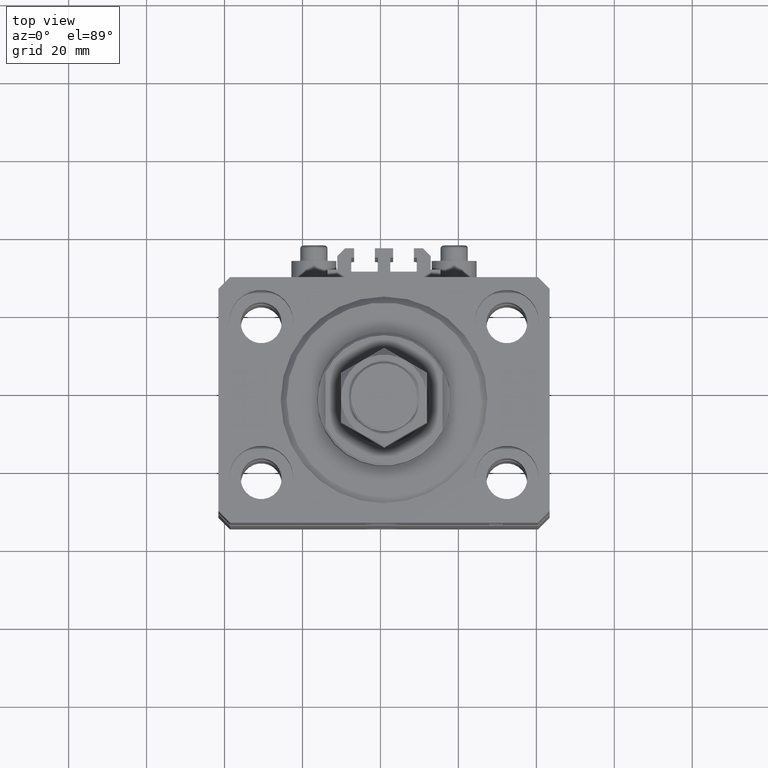
[diagram: clean part render]
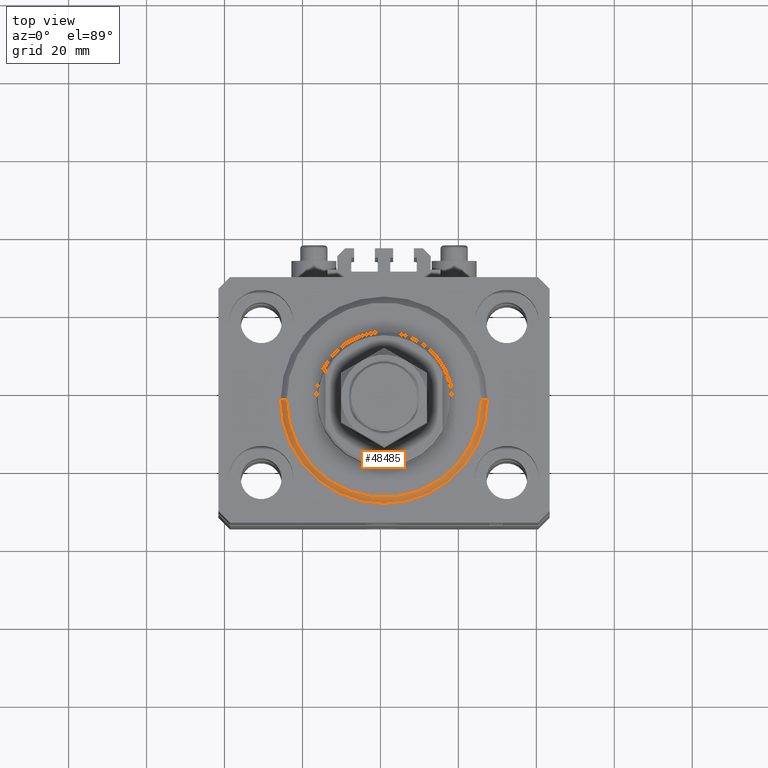
[diagram: same view with one face highlighted and labeled with its STEP entity id]
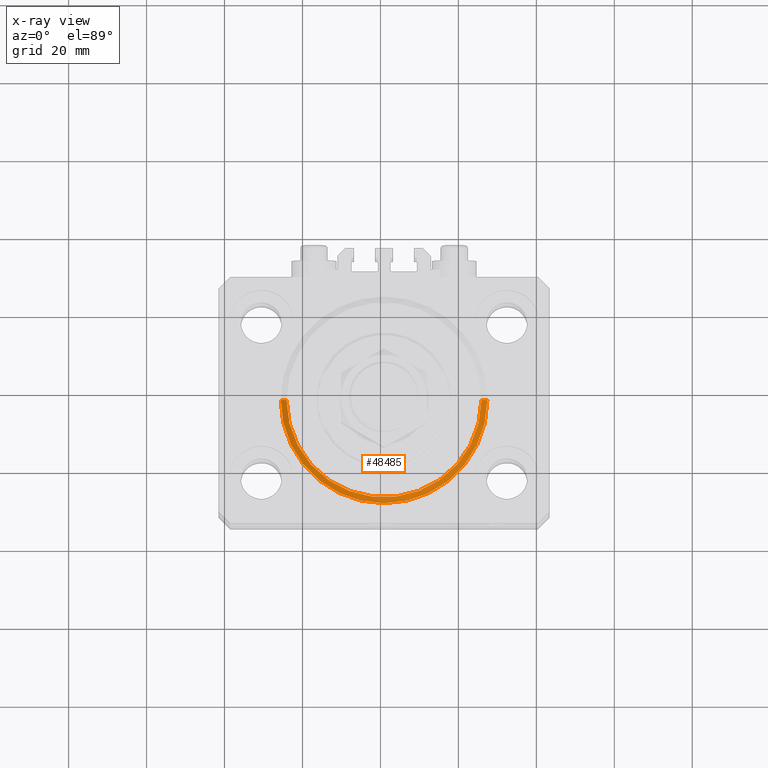
[diagram: x-ray of the same camera — body ghosted, the highlighted face saturated]
A machine part, top view. The second image highlights one B-rep face of the part: STEP entity #48485.
The next image is the same camera in x-ray: the body ghosted, the highlighted face saturated — about 0% of this face is hidden behind the body in this view.
In plain terms, the highlighted conical surface has half-angle 45 deg.
Its self-contained STEP definition (entity closure, byte-faithful):
#1701 = ORIENTED_EDGE ( 'NONE', *, *, #1730, .T. ) ;
#1730 = EDGE_CURVE ( 'NONE', #28769, #25370, #29634, .T. ) ;
#1746 = LINE ( 'NONE', #8984, #27903 ) ;
#2828 = CARTESIAN_POINT ( 'NONE',  ( -24.99999999999998224, 3.153465507804433615E-15, 0.000000000000000000 ) ) ;
#3593 = AXIS2_PLACEMENT_3D ( 'NONE', #35884, #40133, #16984 ) ;
#3679 = EDGE_CURVE ( 'NONE', #38087, #25370, #27474, .T. ) ;
#4215 = AXIS2_PLACEMENT_3D ( 'NONE', #8119, #16090, #20296 ) ;
#5021 = CARTESIAN_POINT ( 'NONE',  ( 0.000000000000000000, 0.000000000000000000, 1.500000000000018652 ) ) ;
#7684 = ORIENTED_EDGE ( 'NONE', *, *, #48801, .F. ) ;
#8119 = CARTESIAN_POINT ( 'NONE',  ( 0.000000000000000000, 0.000000000000000000, 0.000000000000000000 ) ) ;
#8984 = CARTESIAN_POINT ( 'NONE',  ( -26.50000000000000355, 3.245314017740486554E-15, 1.500000000000018652 ) ) ;
#10729 = CARTESIAN_POINT ( 'NONE',  ( 26.50000000000000355, 0.000000000000000000, 1.500000000000018652 ) ) ;
#12754 = DIRECTION ( 'NONE',  ( -0.000000000000000000, -0.000000000000000000, 1.000000000000000000 ) ) ;
#15463 = CIRCLE ( 'NONE', #4215, 24.99999999999998224 ) ;
#16090 = DIRECTION ( 'NONE',  ( -0.000000000000000000, -0.000000000000000000, -1.000000000000000000 ) ) ;
#16984 = DIRECTION ( 'NONE',  ( 1.000000000000000000, 0.000000000000000000, 0.000000000000000000 ) ) ;
#17963 = EDGE_LOOP ( 'NONE', ( #45278, #7684, #1701, #21302 ) ) ;
#18622 = VECTOR ( 'NONE', #22180, 1000.000000000000000 ) ;
#20296 = DIRECTION ( 'NONE',  ( 1.000000000000000000, 0.000000000000000000, 0.000000000000000000 ) ) ;
#21302 = ORIENTED_EDGE ( 'NONE', *, *, #3679, .F. ) ;
#22180 = DIRECTION ( 'NONE',  ( 0.7071067811865483499, 0.000000000000000000, 0.7071067811865466846 ) ) ;
#25370 = VERTEX_POINT ( 'NONE', #33833 ) ;
#26968 = VERTEX_POINT ( 'NONE', #2828 ) ;
#27474 = CIRCLE ( 'NONE', #3593, 26.50000000000000355 ) ;
#27903 = VECTOR ( 'NONE', #43348, 1000.000000000000000 ) ;
#28769 = VERTEX_POINT ( 'NONE', #38799 ) ;
#29634 = LINE ( 'NONE', #10729, #18622 ) ;
#32508 = CARTESIAN_POINT ( 'NONE',  ( -26.50000000000000355, 0.000000000000000000, 1.500000000000018652 ) ) ;
#33833 = CARTESIAN_POINT ( 'NONE',  ( 26.50000000000000355, 3.245314017740486554E-15, 1.500000000000018652 ) ) ;
#34084 = EDGE_CURVE ( 'NONE', #26968, #38087, #1746, .T. ) ;
#35884 = CARTESIAN_POINT ( 'NONE',  ( 0.000000000000000000, 0.000000000000000000, 1.500000000000018652 ) ) ;
#36863 = AXIS2_PLACEMENT_3D ( 'NONE', #5021, #12754, #43118 ) ;
#38087 = VERTEX_POINT ( 'NONE', #32508 ) ;
#38799 = CARTESIAN_POINT ( 'NONE',  ( 24.99999999999998224, 0.000000000000000000, 0.000000000000000000 ) ) ;
#39134 = FACE_OUTER_BOUND ( 'NONE', #17963, .T. ) ;
#40133 = DIRECTION ( 'NONE',  ( -0.000000000000000000, -0.000000000000000000, 1.000000000000000000 ) ) ;
#43118 = DIRECTION ( 'NONE',  ( 1.000000000000000000, 0.000000000000000000, 0.000000000000000000 ) ) ;
#43348 = DIRECTION ( 'NONE',  ( -0.7071067811865483499, 8.659560562354942719E-17, 0.7071067811865466846 ) ) ;
#44009 = CONICAL_SURFACE ( 'NONE', #36863, 26.50000000000000355, 0.7853981633974495002 ) ;
#45278 = ORIENTED_EDGE ( 'NONE', *, *, #34084, .F. ) ;
#48485 = ADVANCED_FACE ( 'NONE', ( #39134 ), #44009, .T. ) ;
#48801 = EDGE_CURVE ( 'NONE', #28769, #26968, #15463, .T. ) ;